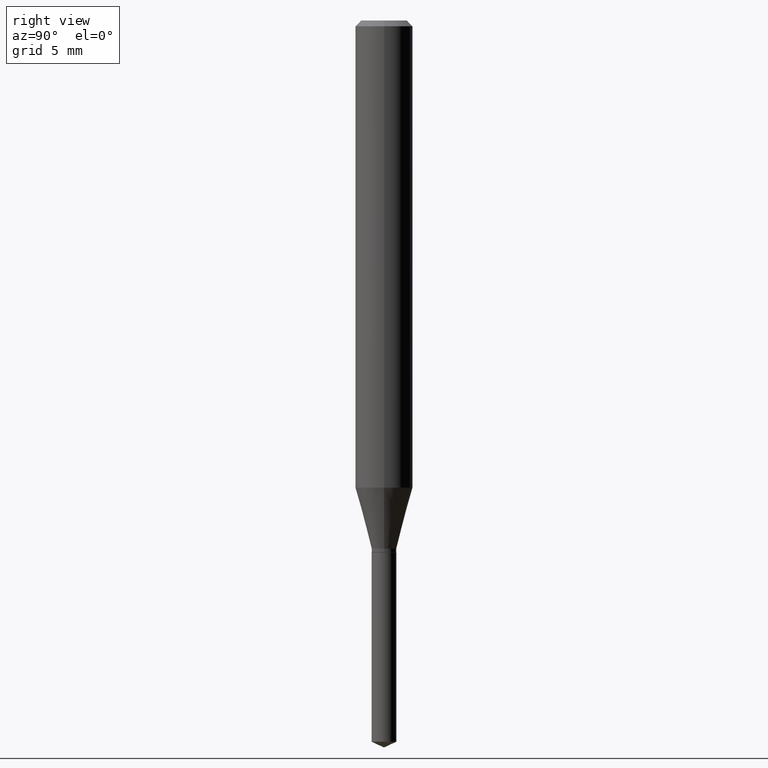
[diagram: clean part render]
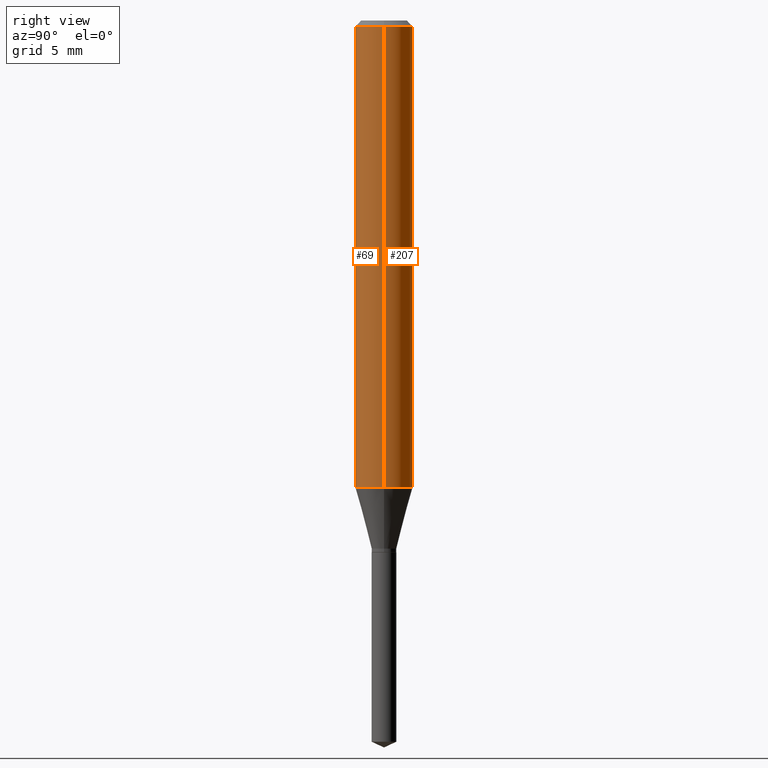
[diagram: same view with one multi-face feature highlighted, each face labeled with its STEP entity id]
A machine part, right view. The highlighted faces form ONE feature: a constant-radius fillet chain: 2 tangent blend faces with common blend radius 1.4999 mm. The faces share edges in the B-rep.
Their STEP definitions:
[1] entity #207 (Cylinder):
#8 = CARTESIAN_POINT ( 'NONE',  ( -0.05905000000000006077, 4.195754854663395916E-16, -2.904631170795524694E-30 ) ) ;
#18 = CARTESIAN_POINT ( 'NONE',  ( 0.05905000000000006077, -4.123439461173744764E-16, 2.879382386107503023E-30 ) ) ;
#19 = VERTEX_POINT ( 'NONE', #344 ) ;
#25 = EDGE_CURVE ( 'NONE', #19, #350, #82, .T. ) ;
#44 = FACE_OUTER_BOUND ( 'NONE', #440, .T. ) ;
#47 = DIRECTION ( 'NONE',  ( 1.000000000000000000, -6.982962677686266711E-15, 4.876176775795935793E-29 ) ) ;
#52 = VECTOR ( 'NONE', #120, 39.37007874015748143 ) ;
#82 = CIRCLE ( 'NONE', #92, 0.05905000000000011628 ) ;
#88 = CYLINDRICAL_SURFACE ( 'NONE', #339, 0.05905000000000006077 ) ;
#89 = ORIENTED_EDGE ( 'NONE', *, *, #475, .F. ) ;
#92 = AXIS2_PLACEMENT_3D ( 'NONE', #342, #349, #453 ) ;
#120 = DIRECTION ( 'NONE',  ( -2.445468806185136877E-29, 3.491481338843145188E-15, 1.000000000000000000 ) ) ;
#133 = DIRECTION ( 'NONE',  ( -2.445468806185136877E-29, 3.491481338843145188E-15, 1.000000000000000000 ) ) ;
#162 = VERTEX_POINT ( 'NONE', #414 ) ;
#171 = CARTESIAN_POINT ( 'NONE',  ( 2.888098660104665518E-31, -4.123439461173782112E-17, -0.01181000000000007738 ) ) ;
#207 = ADVANCED_FACE ( 'NONE', ( #44 ), #88, .T. ) ;
#216 = CARTESIAN_POINT ( 'NONE',  ( -0.05904999999999999832, -1.279251005186026858E-15, -0.01181000000000007738 ) ) ;
#231 = AXIS2_PLACEMENT_3D ( 'NONE', #171, #403, #441 ) ;
#245 = CARTESIAN_POINT ( 'NONE',  ( 0.000000000000000000, 0.000000000000000000, 0.000000000000000000 ) ) ;
#251 = CARTESIAN_POINT ( 'NONE',  ( -0.05905000000000011628, -2.936843101226656270E-15, -0.9613164903253069715 ) ) ;
#257 = ORIENTED_EDGE ( 'NONE', *, *, #372, .F. ) ;
#289 = EDGE_CURVE ( 'NONE', #350, #410, #461, .T. ) ;
#324 = CIRCLE ( 'NONE', #231, 0.05904999999999999832 ) ;
#339 = AXIS2_PLACEMENT_3D ( 'NONE', #245, #395, #47 ) ;
#342 = CARTESIAN_POINT ( 'NONE',  ( 2.350869489961913671E-29, -3.356418586692996552E-15, -0.9613164903253069715 ) ) ;
#344 = CARTESIAN_POINT ( 'NONE',  ( 0.05905000000000011628, -3.768762532810371078E-15, -0.9613164903253069715 ) ) ;
#349 = DIRECTION ( 'NONE',  ( -2.445468806185136597E-29, 3.491481338843145583E-15, 1.000000000000000000 ) ) ;
#350 = VERTEX_POINT ( 'NONE', #251 ) ;
#362 = VECTOR ( 'NONE', #133, 39.37007874015748143 ) ;
#372 = EDGE_CURVE ( 'NONE', #162, #410, #324, .T. ) ;
#395 = DIRECTION ( 'NONE',  ( -2.445468806185136597E-29, 3.491481338843145583E-15, 1.000000000000000000 ) ) ;
#403 = DIRECTION ( 'NONE',  ( -2.445468806185136597E-29, 3.491481338843145583E-15, 1.000000000000000000 ) ) ;
#410 = VERTEX_POINT ( 'NONE', #216 ) ;
#414 = CARTESIAN_POINT ( 'NONE',  ( 0.05904999999999999832, -4.535783407291118600E-16, -0.01181000000000007738 ) ) ;
#432 = ORIENTED_EDGE ( 'NONE', *, *, #289, .T. ) ;
#436 = LINE ( 'NONE', #18, #362 ) ;
#440 = EDGE_LOOP ( 'NONE', ( #479, #432, #257, #89 ) ) ;
#441 = DIRECTION ( 'NONE',  ( 1.000000000000000000, -6.982962677686266711E-15, 0.000000000000000000 ) ) ;
#453 = DIRECTION ( 'NONE',  ( 1.000000000000000000, -6.982962677686266711E-15, 0.000000000000000000 ) ) ;
#461 = LINE ( 'NONE', #8, #52 ) ;
#475 = EDGE_CURVE ( 'NONE', #19, #162, #436, .T. ) ;
#479 = ORIENTED_EDGE ( 'NONE', *, *, #25, .T. ) ;
[2] entity #69 (Cylinder):
#8 = CARTESIAN_POINT ( 'NONE',  ( -0.05905000000000006077, 4.195754854663395916E-16, -2.904631170795524694E-30 ) ) ;
#18 = CARTESIAN_POINT ( 'NONE',  ( 0.05905000000000006077, -4.123439461173744764E-16, 2.879382386107503023E-30 ) ) ;
#19 = VERTEX_POINT ( 'NONE', #344 ) ;
#52 = VECTOR ( 'NONE', #120, 39.37007874015748143 ) ;
#56 = DIRECTION ( 'NONE',  ( -2.445468806185136597E-29, 3.491481338843145583E-15, 1.000000000000000000 ) ) ;
#59 = CARTESIAN_POINT ( 'NONE',  ( 2.350869489961913671E-29, -3.356418586692996552E-15, -0.9613164903253069715 ) ) ;
#62 = EDGE_LOOP ( 'NONE', ( #185, #212, #317, #312 ) ) ;
#69 = ADVANCED_FACE ( 'NONE', ( #425 ), #232, .T. ) ;
#93 = AXIS2_PLACEMENT_3D ( 'NONE', #59, #405, #293 ) ;
#119 = CIRCLE ( 'NONE', #93, 0.05905000000000011628 ) ;
#120 = DIRECTION ( 'NONE',  ( -2.445468806185136877E-29, 3.491481338843145188E-15, 1.000000000000000000 ) ) ;
#133 = DIRECTION ( 'NONE',  ( -2.445468806185136877E-29, 3.491481338843145188E-15, 1.000000000000000000 ) ) ;
#162 = VERTEX_POINT ( 'NONE', #414 ) ;
#185 = ORIENTED_EDGE ( 'NONE', *, *, #289, .F. ) ;
#212 = ORIENTED_EDGE ( 'NONE', *, *, #363, .T. ) ;
#216 = CARTESIAN_POINT ( 'NONE',  ( -0.05904999999999999832, -1.279251005186026858E-15, -0.01181000000000007738 ) ) ;
#232 = CYLINDRICAL_SURFACE ( 'NONE', #354, 0.05905000000000006077 ) ;
#234 = DIRECTION ( 'NONE',  ( 1.000000000000000000, -6.982962677686266711E-15, 4.876176775795935793E-29 ) ) ;
#251 = CARTESIAN_POINT ( 'NONE',  ( -0.05905000000000011628, -2.936843101226656270E-15, -0.9613164903253069715 ) ) ;
#289 = EDGE_CURVE ( 'NONE', #350, #410, #461, .T. ) ;
#293 = DIRECTION ( 'NONE',  ( 1.000000000000000000, -6.982962677686266711E-15, 0.000000000000000000 ) ) ;
#298 = CARTESIAN_POINT ( 'NONE',  ( 2.888098660104665518E-31, -4.123439461173782112E-17, -0.01181000000000007738 ) ) ;
#311 = DIRECTION ( 'NONE',  ( -2.445468806185136597E-29, 3.491481338843145583E-15, 1.000000000000000000 ) ) ;
#312 = ORIENTED_EDGE ( 'NONE', *, *, #406, .F. ) ;
#317 = ORIENTED_EDGE ( 'NONE', *, *, #475, .T. ) ;
#336 = DIRECTION ( 'NONE',  ( 1.000000000000000000, -6.982962677686266711E-15, 0.000000000000000000 ) ) ;
#344 = CARTESIAN_POINT ( 'NONE',  ( 0.05905000000000011628, -3.768762532810371078E-15, -0.9613164903253069715 ) ) ;
#345 = AXIS2_PLACEMENT_3D ( 'NONE', #298, #56, #336 ) ;
#350 = VERTEX_POINT ( 'NONE', #251 ) ;
#354 = AXIS2_PLACEMENT_3D ( 'NONE', #381, #311, #234 ) ;
#362 = VECTOR ( 'NONE', #133, 39.37007874015748143 ) ;
#363 = EDGE_CURVE ( 'NONE', #350, #19, #119, .T. ) ;
#381 = CARTESIAN_POINT ( 'NONE',  ( 0.000000000000000000, 0.000000000000000000, 0.000000000000000000 ) ) ;
#405 = DIRECTION ( 'NONE',  ( -2.445468806185136597E-29, 3.491481338843145583E-15, 1.000000000000000000 ) ) ;
#406 = EDGE_CURVE ( 'NONE', #410, #162, #444, .T. ) ;
#410 = VERTEX_POINT ( 'NONE', #216 ) ;
#414 = CARTESIAN_POINT ( 'NONE',  ( 0.05904999999999999832, -4.535783407291118600E-16, -0.01181000000000007738 ) ) ;
#425 = FACE_OUTER_BOUND ( 'NONE', #62, .T. ) ;
#436 = LINE ( 'NONE', #18, #362 ) ;
#444 = CIRCLE ( 'NONE', #345, 0.05904999999999999832 ) ;
#461 = LINE ( 'NONE', #8, #52 ) ;
#475 = EDGE_CURVE ( 'NONE', #19, #162, #436, .T. ) ;